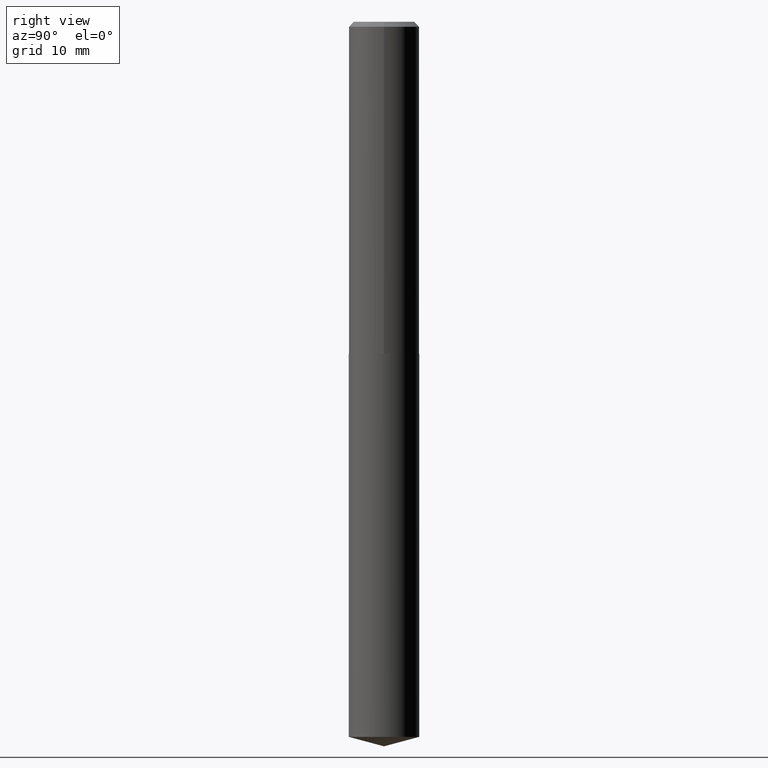
[diagram: clean part render]
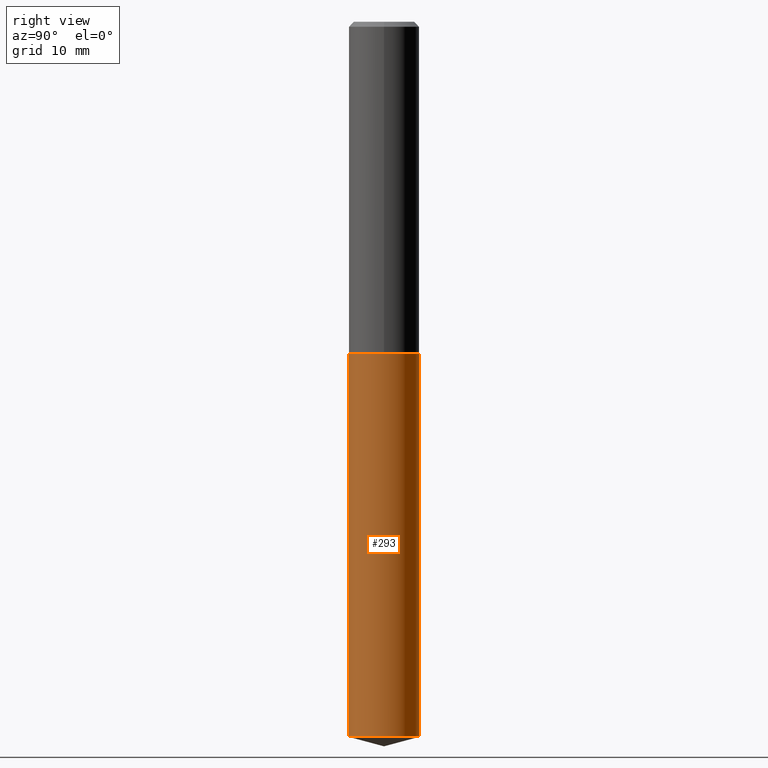
[diagram: same view with one face highlighted and labeled with its STEP entity id]
A machine part, right view. The second image highlights one B-rep face of the part: STEP entity #293.
In plain terms, the highlighted cylindrical surface (edge-blend (fillet) strip) has radius 5.5562 mm, axis along (-0, 0, 1).
Its self-contained STEP definition (entity closure, byte-faithful):
#16 = CARTESIAN_POINT ( 'NONE',  ( 1.554312234475328019E-15, 0.2187499999999927836, -2.062500000000000888 ) ) ;
#19 = EDGE_CURVE ( 'NONE', #353, #80, #276, .T. ) ;
#36 = VERTEX_POINT ( 'NONE', #186 ) ;
#46 = DIRECTION ( 'NONE',  ( -2.445413256762189214E-29, 3.491560888778482926E-15, 1.000000000000000000 ) ) ;
#52 = CARTESIAN_POINT ( 'NONE',  ( -1.527523085743819961E-15, -0.2187500000000071887, -2.062499999999999556 ) ) ;
#68 = DIRECTION ( 'NONE',  ( -6.982962677686265133E-15, -1.000000000000000000, 2.497689594207326371E-15 ) ) ;
#71 = AXIS2_PLACEMENT_3D ( 'NONE', #98, #46, #68 ) ;
#72 = CARTESIAN_POINT ( 'NONE',  ( 1.554312234475328217E-15, 0.2187499999999845957, -4.441386114155693399 ) ) ;
#77 = CYLINDRICAL_SURFACE ( 'NONE', #300, 0.2187500000000000000 ) ;
#78 = ORIENTED_EDGE ( 'NONE', *, *, #311, .T. ) ;
#80 = VERTEX_POINT ( 'NONE', #16 ) ;
#98 = CARTESIAN_POINT ( 'NONE',  ( 1.086113905264066496E-28, -1.550720597640823083E-14, -4.441386114155692511 ) ) ;
#132 = AXIS2_PLACEMENT_3D ( 'NONE', #332, #334, #185 ) ;
#147 = LINE ( 'NONE', #268, #338 ) ;
#156 = VERTEX_POINT ( 'NONE', #72 ) ;
#173 = EDGE_CURVE ( 'NONE', #36, #156, #379, .T. ) ;
#177 = LINE ( 'NONE', #229, #230 ) ;
#185 = DIRECTION ( 'NONE',  ( -6.982962677686265133E-15, -1.000000000000000000, 3.746534391310989557E-15 ) ) ;
#186 = CARTESIAN_POINT ( 'NONE',  ( -1.527523085743762572E-15, -0.2187500000000155986, -4.441386114155691622 ) ) ;
#229 = CARTESIAN_POINT ( 'NONE',  ( 1.554312234475269249E-15, 0.2187499999999927836, -2.062500000000000888 ) ) ;
#230 = VECTOR ( 'NONE', #386, 39.37007874015748143 ) ;
#267 = CARTESIAN_POINT ( 'NONE',  ( 5.043779412756844791E-29, -7.201180261363988578E-15, -2.062500000000000000 ) ) ;
#268 = CARTESIAN_POINT ( 'NONE',  ( -1.527523085743819961E-15, -0.2187500000000071887, -2.062499999999999556 ) ) ;
#276 = CIRCLE ( 'NONE', #132, 0.2187500000000000000 ) ;
#293 = ADVANCED_FACE ( 'NONE', ( #298 ), #77, .T. ) ;
#297 = DIRECTION ( 'NONE',  ( -6.982962677686265133E-15, -1.000000000000000000, 3.746534391310989557E-15 ) ) ;
#298 = FACE_OUTER_BOUND ( 'NONE', #383, .T. ) ;
#300 = AXIS2_PLACEMENT_3D ( 'NONE', #267, #382, #297 ) ;
#311 = EDGE_CURVE ( 'NONE', #156, #80, #177, .T. ) ;
#330 = ORIENTED_EDGE ( 'NONE', *, *, #19, .F. ) ;
#332 = CARTESIAN_POINT ( 'NONE',  ( 5.043779412756844791E-29, -7.201180261363988578E-15, -2.062500000000000000 ) ) ;
#334 = DIRECTION ( 'NONE',  ( -2.445413256762189214E-29, 3.491560888778482926E-15, 1.000000000000000000 ) ) ;
#338 = VECTOR ( 'NONE', #389, 39.37007874015748143 ) ;
#353 = VERTEX_POINT ( 'NONE', #52 ) ;
#355 = ORIENTED_EDGE ( 'NONE', *, *, #173, .T. ) ;
#379 = CIRCLE ( 'NONE', #71, 0.2187500000000000000 ) ;
#382 = DIRECTION ( 'NONE',  ( -2.445413256762189214E-29, 3.491560888778482926E-15, 1.000000000000000000 ) ) ;
#383 = EDGE_LOOP ( 'NONE', ( #355, #78, #330, #390 ) ) ;
#386 = DIRECTION ( 'NONE',  ( -2.445413256762189214E-29, 3.491560888778483320E-15, 1.000000000000000000 ) ) ;
#387 = EDGE_CURVE ( 'NONE', #36, #353, #147, .T. ) ;
#389 = DIRECTION ( 'NONE',  ( -2.445413256762189214E-29, 3.491560888778483320E-15, 1.000000000000000000 ) ) ;
#390 = ORIENTED_EDGE ( 'NONE', *, *, #387, .F. ) ;